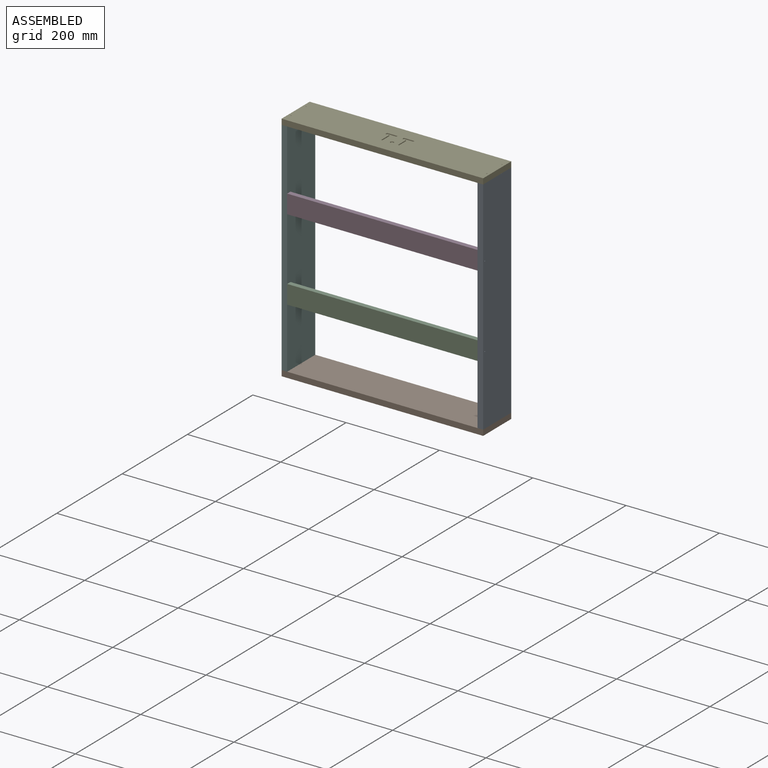
[diagram: assembled view]
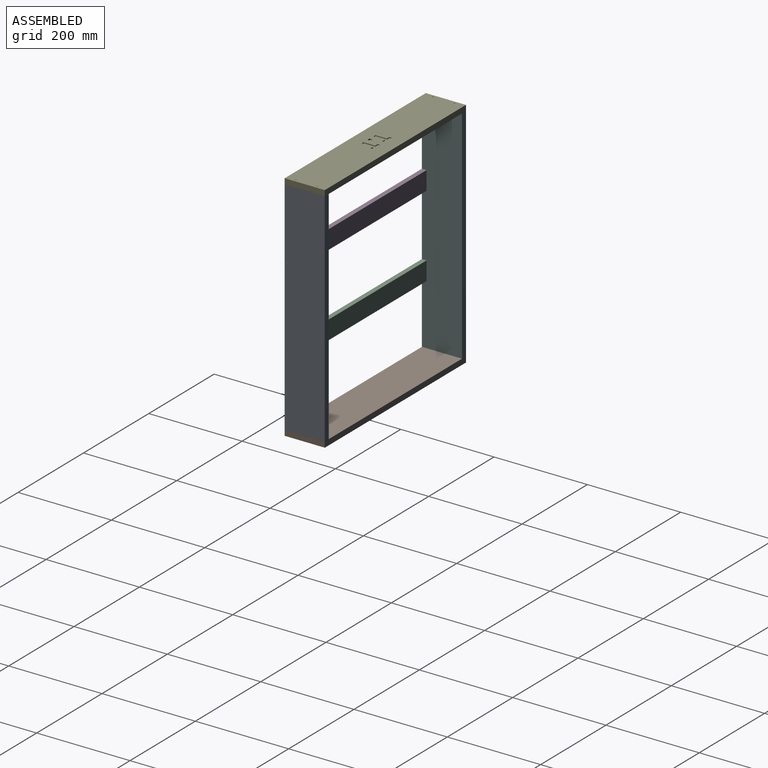
[diagram: assembled view, second angle]
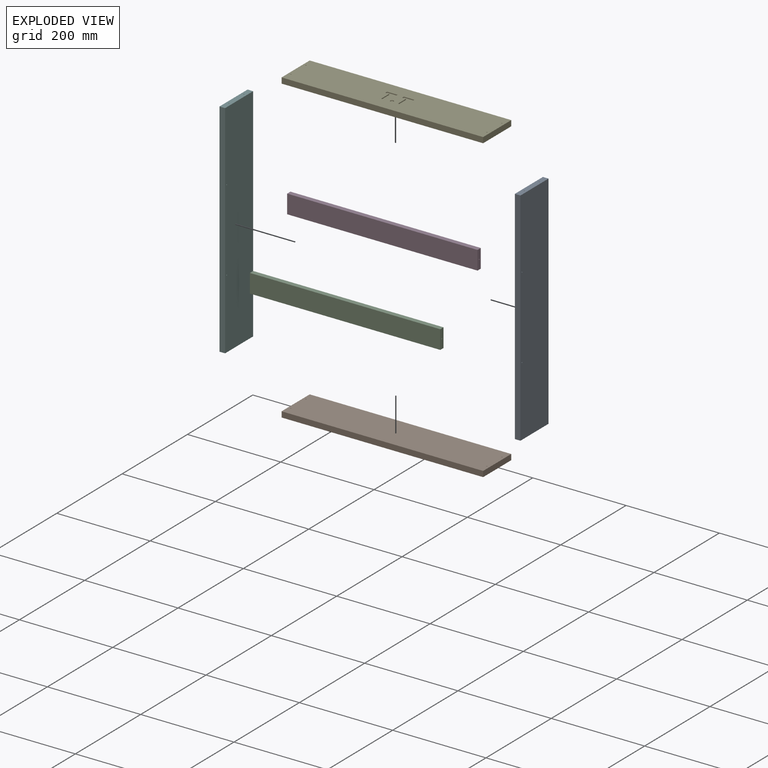
[diagram: exploded view]
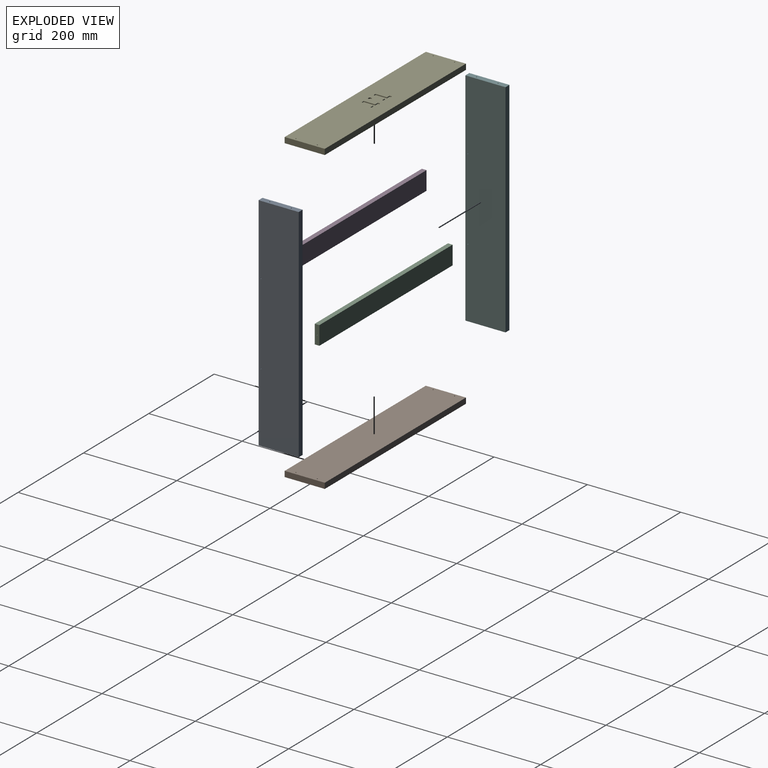
[diagram: exploded view, second angle]
ASSEMBLY  parts=6 mates=5
PART A: 16 faces, bbox 475x86x12 mm
  f0: plane 475x12mm, normal (0,-1,0), area 5700mm2, adj f1,f2,f3,f10
  f1: plane 86x12mm, normal (-1,0,0), area 1025.7mm2, adj f0,f2,f3,f4,f6,f7
  f2: plane 475x86mm, normal (0,0,1), area 40843.7mm2, adj f0,f1,f6,f9,f10,f15
  f3: plane 475x86mm, normal (0,0,-1), area 40843.7mm2, adj f0,f1,f6,f9,f10,f15
  f4: cylinder r=1mm len=12mm, axis (-1,0,0), area 75.4mm2, adj f1,f5
  f5: cone r=0mm half-angle=59deg, axis (-1,0,0), area 3.7mm2, adj f4
  f6: plane 475x12mm, normal (0,1,0), area 5700mm2, adj f1,f2,f3,f10
  f7: cylinder r=1mm len=12mm, axis (-1,0,0), area 75.4mm2, adj f1,f8
  f8: cone r=0mm half-angle=59deg, axis (-1,0,0), area 3.7mm2, adj f7
  f9: cylinder r=1mm len=12mm, axis (0,0,1), area 75.4mm2, adj f2,f3
  f10: plane 86x12mm, normal (1,0,0), area 1025.7mm2, adj f0,f2,f3,f6,f11,f13
  f11: cylinder r=1mm len=12mm, axis (1,0,0), area 75.4mm2, adj f10,f12
  f12: cone r=0mm half-angle=59deg, axis (1,0,0), area 3.7mm2, adj f11
  f13: cylinder r=1mm len=12mm, axis (1,0,0), area 75.4mm2, adj f10,f14
  f14: cone r=0mm half-angle=59deg, axis (1,0,0), area 3.7mm2, adj f13
  f15: cylinder r=1mm len=12mm, axis (0,0,1), area 75.4mm2, adj f2,f3
PART B: 37 faces, bbox 432x86x12 mm
  f0: plane 432x86mm, normal (0,0,1), area 36554.7mm2, adj f1,f2,f4,f5,f6,f7,f8,f9
  f1: plane 432x12mm, normal (0,-1,0), area 5184mm2, adj f0,f2,f3,f5
  f2: plane 86x12mm, normal (-1,0,0), area 1032mm2, adj f0,f1,f3,f7
  f3: plane 432x86mm, normal (0,0,-1), area 37139.4mm2, adj f1,f2,f4,f5,f6,f7,f8,f9
  f4: cylinder r=1mm len=12mm, axis (0,0,1), area 75.4mm2, adj f0,f3
  f5: plane 86x12mm, normal (1,0,0), area 1032mm2, adj f0,f1,f3,f7
  f6: cylinder r=1mm len=12mm, axis (0,0,1), area 75.4mm2, adj f0,f3
  f7: plane 432x12mm, normal (0,1,0), area 5184mm2, adj f0,f2,f3,f5
  f8: cylinder r=1mm len=12mm, axis (0,0,1), area 75.4mm2, adj f0,f3
  f9: cylinder r=1mm len=12mm, axis (0,0,1), area 75.4mm2, adj f0,f3
  f10: plane 24.49x2mm, normal (-1,0,0), area 49mm2, adj f0,f11,f17,f18
  f11: plane 8.07x2mm, normal (0,1,0), area 16.1mm2, adj f0,f10,f12,f18
  f12: plane 5.25x2mm, normal (-1,0,0), area 10.5mm2, adj f0,f11,f13,f18
  f13: plane 22.45x2mm, normal (0,-1,0), area 44.9mm2, adj f0,f12,f14,f18
  f14: plane 5.25x2mm, normal (1,0,0), area 10.5mm2, adj f0,f13,f15,f18
  f15: plane 8.08x2mm, normal (0,1,0), area 16.2mm2, adj f0,f14,f16,f18
  f16: plane 24.49x2mm, normal (1,0,0), area 49mm2, adj f0,f15,f17,f18
  f17: plane 6.31x2mm, normal (0,1,0), area 12.6mm2, adj f0,f10,f16,f18
  f18: plane 29.73x22.45mm, normal (0,0,1), area 272.2mm2, adj f10,f11,f12,f13,f14,f15,f16,f17
  f19: extruded ~2.55x2mm, area 5.6mm2, adj f0,f20,f26,f27
  f20: extruded ~2.65x2mm, area 5.7mm2, adj f0,f19,f21,f27
  f21: extruded ~2.6x2mm, area 5.7mm2, adj f0,f20,f22,f27
  f22: extruded ~2.53x2mm, area 5.5mm2, adj f0,f21,f23,f27
  f23: extruded ~2.56x2mm, area 5.6mm2, adj f0,f22,f24,f27
  f24: extruded ~2.61x2mm, area 5.7mm2, adj f0,f23,f25,f27
  f25: extruded ~2.67x2mm, area 5.8mm2, adj f0,f24,f26,f27
  f26: extruded ~2.58x2mm, area 5.6mm2, adj f0,f19,f25,f27
  f27: plane 7.11x6.91mm, normal (0,0,1), area 40.4mm2, adj f19,f20,f21,f22,f23,f24,f25,f26
  f28: plane 24.49x2mm, normal (-1,0,0), area 49mm2, adj f0,f29,f35,f36
  f29: plane 8.07x2mm, normal (0,1,0), area 16.1mm2, adj f0,f28,f30,f36
  f30: plane 5.25x2mm, normal (-1,0,0), area 10.5mm2, adj f0,f29,f31,f36
  f31: plane 22.45x2mm, normal (0,-1,0), area 44.9mm2, adj f0,f30,f32,f36
  f32: plane 5.25x2mm, normal (1,0,0), area 10.5mm2, adj f0,f31,f33,f36
  f33: plane 8.08x2mm, normal (0,1,0), area 16.2mm2, adj f0,f32,f34,f36
  f34: plane 24.49x2mm, normal (1,0,0), area 49mm2, adj f0,f33,f35,f36
  f35: plane 6.31x2mm, normal (0,1,0), area 12.6mm2, adj f0,f28,f34,f36
  f36: plane 29.73x22.45mm, normal (0,0,1), area 272.2mm2, adj f28,f29,f30,f31,f32,f33,f34,f35
PART C: 10 faces, bbox 408x40x10 mm
  f0: plane 408x10mm, normal (0,-1,0), area 4080mm2, adj f1,f2,f3,f7
  f1: plane 40x10mm, normal (-1,0,0), area 396.9mm2, adj f0,f2,f3,f5,f6
  f2: plane 408x40mm, normal (0,0,1), area 16320mm2, adj f0,f1,f6,f7
  f3: plane 408x40mm, normal (0,0,-1), area 16320mm2, adj f0,f1,f6,f7
  f4: cone r=0mm half-angle=59deg, axis (-1,0,0), area 3.7mm2, adj f5
  f5: cylinder r=1mm len=12mm, axis (-1,0,0), area 75.4mm2, adj f1,f4
  f6: plane 408x10mm, normal (0,1,0), area 4080mm2, adj f1,f2,f3,f7
  f7: plane 40x10mm, normal (1,0,0), area 396.9mm2, adj f0,f2,f3,f6,f9
  f8: cone r=0mm half-angle=59deg, axis (1,0,0), area 3.7mm2, adj f9
  f9: cylinder r=1mm len=12mm, axis (1,0,0), area 75.4mm2, adj f7,f8
PART D: same geometry as C
PART E: same geometry as B
PART F: same geometry as A
PLACE A rot(axis=(0,-1,0),90deg) t=(305.95,-31.25,-250.66)mm
PLACE B rot(axis=(0,-1,0),180deg) t=(89.95,-31.25,-488.16)mm
PLACE C rot(axis=(1,0,0),90deg) t=(89.95,-64.25,-338.16)mm
PLACE D rot(axis=(-1,0,0),90deg) t=(89.95,-74.25,-163.16)mm
PLACE E rot(axis=(-0.45,0.42,0.79),0deg) t=(89.95,-31.25,-13.16)mm fixed
PLACE F rot(axis=(0,1,0),90deg) t=(-126.05,-31.25,-250.66)mm
MATE fastened A.f11 <-> E.f6  axis (0,0,1) through (299.95,-54.25,-13.16)mm
MATE fastened B.f8 <-> A.f7  axis (0,0,1) through (299.95,-8.25,-488.16)mm
MATE fastened A.f15 <-> D.f9  axis (1,0,0) through (305.95,-69.25,-163.16)mm
MATE fastened E.f8 <-> F.f7  axis (0,0,1) through (-120.05,-8.25,-1.16)mm
MATE fastened F.f15 <-> C.f5  axis (-1,0,0) through (-126.05,-69.25,-338.16)mm
